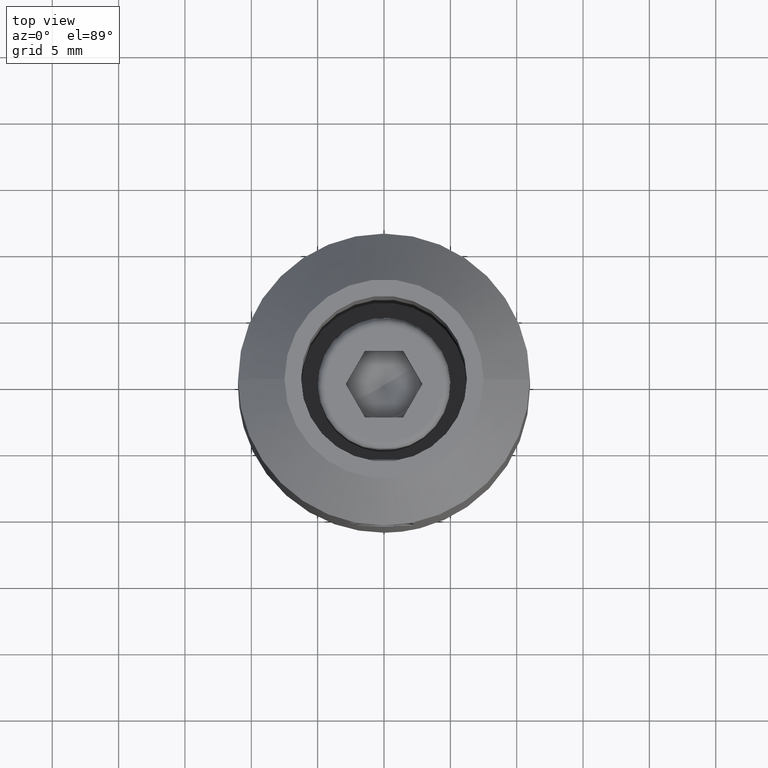
[diagram: clean part render]
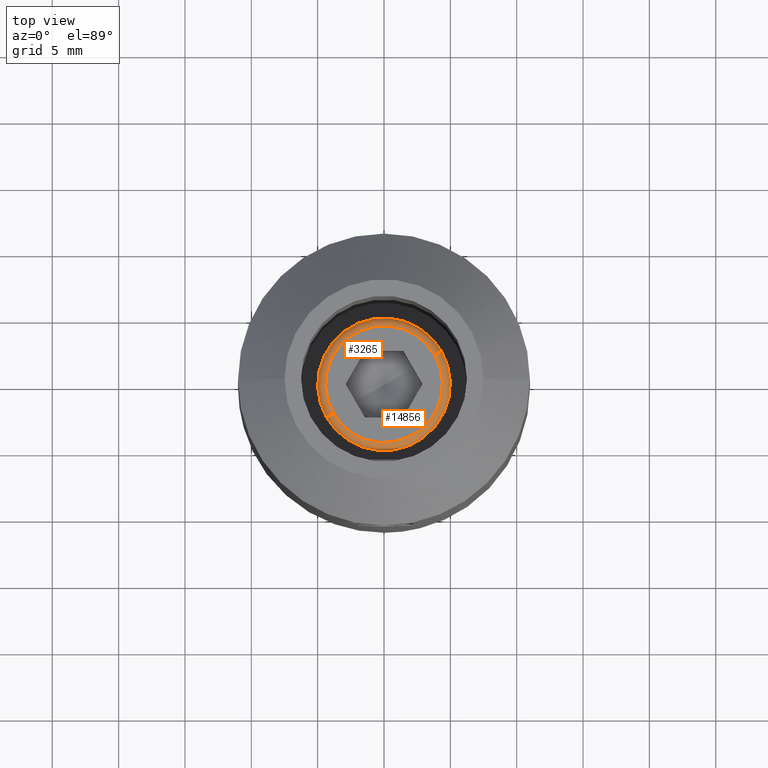
[diagram: same view with one multi-face feature highlighted, each face labeled with its STEP entity id]
A machine part, top view. The highlighted faces form ONE feature: a constant-radius fillet chain: 2 tangent blend faces with common blend radius 0.6 mm. The faces share edges in the B-rep.
Their STEP definitions:
[1] entity #14856 (Torus):
#50 = DIRECTION ( 'NONE',  ( -0.000000000000000000, -1.000000000000000000, -2.109423746787771394E-15 ) ) ;
#211 = AXIS2_PLACEMENT_3D ( 'NONE', #15722, #1878, #5521 ) ;
#1124 = EDGE_CURVE ( 'NONE', #17518, #4943, #1521, .T. ) ;
#1423 = CIRCLE ( 'NONE', #16103, 4.400000000000054534 ) ;
#1521 = CIRCLE ( 'NONE', #211, 0.5999999999999998668 ) ;
#1878 = DIRECTION ( 'NONE',  ( 0.000000000000000000, 1.000000000000000000, 2.231888426702506543E-15 ) ) ;
#2040 = TOROIDAL_SURFACE ( 'NONE', #20611, 4.400000000000000355, 0.5999999999999999778 ) ;
#2118 = EDGE_LOOP ( 'NONE', ( #2767, #8324, #11909, #6690 ) ) ;
#2767 = ORIENTED_EDGE ( 'NONE', *, *, #1124, .F. ) ;
#3889 = FACE_OUTER_BOUND ( 'NONE', #2118, .T. ) ;
#4068 = CARTESIAN_POINT ( 'NONE',  ( 0.6000000000000033085, 0.000000000000000000, 0.000000000000000000 ) ) ;
#4943 = VERTEX_POINT ( 'NONE', #21555 ) ;
#5458 = CIRCLE ( 'NONE', #18671, 5.000000000000062172 ) ;
#5521 = DIRECTION ( 'NONE',  ( 0.000000000000000000, -2.231888426702507726E-15, 1.000000000000000000 ) ) ;
#6511 = EDGE_CURVE ( 'NONE', #18780, #8095, #17720, .T. ) ;
#6690 = ORIENTED_EDGE ( 'NONE', *, *, #8080, .F. ) ;
#6903 = EDGE_CURVE ( 'NONE', #18780, #17518, #5458, .T. ) ;
#7444 = CARTESIAN_POINT ( 'NONE',  ( 0.6000000000000033085, -1.054711873393898713E-14, 5.000000000000062172 ) ) ;
#7858 = CARTESIAN_POINT ( 'NONE',  ( 0.6000000000000033085, 1.115944213351253350E-14, -5.000000000000000000 ) ) ;
#8080 = EDGE_CURVE ( 'NONE', #4943, #8095, #1423, .T. ) ;
#8095 = VERTEX_POINT ( 'NONE', #18919 ) ;
#8324 = ORIENTED_EDGE ( 'NONE', *, *, #6903, .F. ) ;
#8647 = CARTESIAN_POINT ( 'NONE',  ( 0.000000000000000000, 0.000000000000000000, 0.000000000000000000 ) ) ;
#8975 = DIRECTION ( 'NONE',  ( 0.000000000000000000, 2.109423746787771000E-15, -1.000000000000000000 ) ) ;
#9536 = AXIS2_PLACEMENT_3D ( 'NONE', #20455, #50, #8975 ) ;
#10973 = DIRECTION ( 'NONE',  ( -1.000000000000000000, 0.000000000000000000, 0.000000000000000000 ) ) ;
#11909 = ORIENTED_EDGE ( 'NONE', *, *, #6511, .T. ) ;
#12473 = DIRECTION ( 'NONE',  ( 0.000000000000000000, -2.109423746787771000E-15, 1.000000000000000000 ) ) ;
#14856 = ADVANCED_FACE ( 'NONE', ( #3889 ), #2040, .T. ) ;
#15184 = DIRECTION ( 'NONE',  ( 0.000000000000000000, -2.109423746787771394E-15, 1.000000000000000000 ) ) ;
#15354 = CARTESIAN_POINT ( 'NONE',  ( 0.6000000000000033085, 0.000000000000000000, 0.000000000000000000 ) ) ;
#15722 = CARTESIAN_POINT ( 'NONE',  ( 0.6000000000000033085, 9.820309077491149956E-15, -4.400000000000054534 ) ) ;
#16103 = AXIS2_PLACEMENT_3D ( 'NONE', #8647, #17211, #15184 ) ;
#17211 = DIRECTION ( 'NONE',  ( -1.000000000000000000, 0.000000000000000000, 0.000000000000000000 ) ) ;
#17307 = DIRECTION ( 'NONE',  ( 1.000000000000000000, -0.000000000000000000, -0.000000000000000000 ) ) ;
#17518 = VERTEX_POINT ( 'NONE', #7858 ) ;
#17720 = CIRCLE ( 'NONE', #9536, 0.5999999999999998668 ) ;
#18671 = AXIS2_PLACEMENT_3D ( 'NONE', #15354, #17307, #19004 ) ;
#18780 = VERTEX_POINT ( 'NONE', #7444 ) ;
#18919 = CARTESIAN_POINT ( 'NONE',  ( 0.000000000000000000, -9.281464485866309625E-15, 4.400000000000054534 ) ) ;
#19004 = DIRECTION ( 'NONE',  ( 0.000000000000000000, -2.109423746787771394E-15, 1.000000000000000000 ) ) ;
#20455 = CARTESIAN_POINT ( 'NONE',  ( 0.6000000000000033085, -9.281464485866309625E-15, 4.400000000000054534 ) ) ;
#20611 = AXIS2_PLACEMENT_3D ( 'NONE', #4068, #10973, #12473 ) ;
#21555 = CARTESIAN_POINT ( 'NONE',  ( 0.000000000000000000, 1.048987560550177941E-14, -4.400000000000000355 ) ) ;
[2] entity #3265 (Torus):
#50 = DIRECTION ( 'NONE',  ( -0.000000000000000000, -1.000000000000000000, -2.109423746787771394E-15 ) ) ;
#211 = AXIS2_PLACEMENT_3D ( 'NONE', #15722, #1878, #5521 ) ;
#1094 = DIRECTION ( 'NONE',  ( 0.000000000000000000, -2.109423746787771394E-15, 1.000000000000000000 ) ) ;
#1124 = EDGE_CURVE ( 'NONE', #17518, #4943, #1521, .T. ) ;
#1252 = CARTESIAN_POINT ( 'NONE',  ( 0.6000000000000033085, 0.000000000000000000, 0.000000000000000000 ) ) ;
#1521 = CIRCLE ( 'NONE', #211, 0.5999999999999998668 ) ;
#1878 = DIRECTION ( 'NONE',  ( 0.000000000000000000, 1.000000000000000000, 2.231888426702506543E-15 ) ) ;
#2274 = AXIS2_PLACEMENT_3D ( 'NONE', #12667, #7248, #10789 ) ;
#3265 = ADVANCED_FACE ( 'NONE', ( #16401 ), #11032, .T. ) ;
#4943 = VERTEX_POINT ( 'NONE', #21555 ) ;
#5521 = DIRECTION ( 'NONE',  ( 0.000000000000000000, -2.231888426702507726E-15, 1.000000000000000000 ) ) ;
#5664 = AXIS2_PLACEMENT_3D ( 'NONE', #1252, #13159, #21821 ) ;
#6015 = DIRECTION ( 'NONE',  ( -1.000000000000000000, 0.000000000000000000, 0.000000000000000000 ) ) ;
#6494 = ORIENTED_EDGE ( 'NONE', *, *, #16918, .F. ) ;
#6511 = EDGE_CURVE ( 'NONE', #18780, #8095, #17720, .T. ) ;
#7248 = DIRECTION ( 'NONE',  ( 1.000000000000000000, -0.000000000000000000, -0.000000000000000000 ) ) ;
#7444 = CARTESIAN_POINT ( 'NONE',  ( 0.6000000000000033085, -1.054711873393898713E-14, 5.000000000000062172 ) ) ;
#7685 = ORIENTED_EDGE ( 'NONE', *, *, #1124, .T. ) ;
#7858 = CARTESIAN_POINT ( 'NONE',  ( 0.6000000000000033085, 1.115944213351253350E-14, -5.000000000000000000 ) ) ;
#8095 = VERTEX_POINT ( 'NONE', #18919 ) ;
#8154 = ORIENTED_EDGE ( 'NONE', *, *, #6511, .F. ) ;
#8975 = DIRECTION ( 'NONE',  ( 0.000000000000000000, 2.109423746787771000E-15, -1.000000000000000000 ) ) ;
#9179 = EDGE_CURVE ( 'NONE', #17518, #18780, #20861, .T. ) ;
#9491 = CARTESIAN_POINT ( 'NONE',  ( 0.000000000000000000, 0.000000000000000000, 0.000000000000000000 ) ) ;
#9536 = AXIS2_PLACEMENT_3D ( 'NONE', #20455, #50, #8975 ) ;
#10789 = DIRECTION ( 'NONE',  ( 0.000000000000000000, -2.109423746787771394E-15, 1.000000000000000000 ) ) ;
#11032 = TOROIDAL_SURFACE ( 'NONE', #5664, 4.400000000000000355, 0.5999999999999999778 ) ;
#12667 = CARTESIAN_POINT ( 'NONE',  ( 0.6000000000000033085, 0.000000000000000000, 0.000000000000000000 ) ) ;
#13159 = DIRECTION ( 'NONE',  ( -1.000000000000000000, 0.000000000000000000, 0.000000000000000000 ) ) ;
#14646 = EDGE_LOOP ( 'NONE', ( #15178, #7685, #6494, #8154 ) ) ;
#14854 = CIRCLE ( 'NONE', #19758, 4.400000000000054534 ) ;
#15178 = ORIENTED_EDGE ( 'NONE', *, *, #9179, .F. ) ;
#15722 = CARTESIAN_POINT ( 'NONE',  ( 0.6000000000000033085, 9.820309077491149956E-15, -4.400000000000054534 ) ) ;
#16401 = FACE_OUTER_BOUND ( 'NONE', #14646, .T. ) ;
#16918 = EDGE_CURVE ( 'NONE', #8095, #4943, #14854, .T. ) ;
#17518 = VERTEX_POINT ( 'NONE', #7858 ) ;
#17720 = CIRCLE ( 'NONE', #9536, 0.5999999999999998668 ) ;
#18780 = VERTEX_POINT ( 'NONE', #7444 ) ;
#18919 = CARTESIAN_POINT ( 'NONE',  ( 0.000000000000000000, -9.281464485866309625E-15, 4.400000000000054534 ) ) ;
#19758 = AXIS2_PLACEMENT_3D ( 'NONE', #9491, #6015, #1094 ) ;
#20455 = CARTESIAN_POINT ( 'NONE',  ( 0.6000000000000033085, -9.281464485866309625E-15, 4.400000000000054534 ) ) ;
#20861 = CIRCLE ( 'NONE', #2274, 5.000000000000062172 ) ;
#21555 = CARTESIAN_POINT ( 'NONE',  ( 0.000000000000000000, 1.048987560550177941E-14, -4.400000000000000355 ) ) ;
#21821 = DIRECTION ( 'NONE',  ( 0.000000000000000000, -2.109423746787771000E-15, 1.000000000000000000 ) ) ;